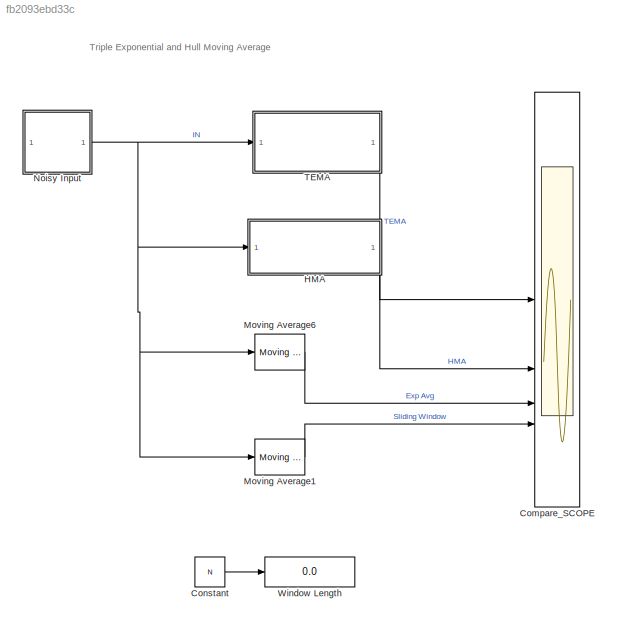
MODEL slx_fb2093ebd33c
KIND model
CONFIG AbsTol = auto
CONFIG EnableMultiTasking = off
CONFIG FixedStep = auto
CONFIG MaxStep = auto
CONFIG MinStep = auto
CONFIG PreLoadFcn = N = 100;
CONFIG RelTol = 1e-3
CONFIG SampleTimeConstraint = Unconstrained
CONFIG SolverName = VariableStepAuto
CONFIG StartTime = 0.0
CONFIG StopTime = 700
BLOCK [Scope] Compare_SCOPE
  Floating = off
  NumInputPorts = 4
  ScopeSpecificationString = Simulink.scopes.TimeScopeBlockCfg('CurrentConfiguration', extmgr.ConfigurationSet(extmgr.Configuration('Core','General UI',true),extmgr.Configuration('Core','Source UI',true),extmgr.Configuration('Sources','WiredSimulink',true),extmgr.Configuration('Visuals','Time Domain',true,'SerializedDisplays',{struct('MinYLimReal','-0.26876','MaxYLimReal','2.56185','YLabelReal','','MinYLimMag','0.00000','MaxY...<+1544ch>
BLOCK [Constant] Constant
  Value = N
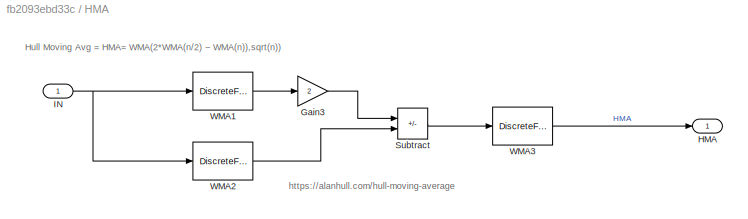
BLOCK [SubSystem] HMA
BLOCK [Gain] HMA/Gain3
  Gain = 2
BLOCK [Outport] HMA/HMA
BLOCK [Inport] HMA/IN
BLOCK [Sum] HMA/Subtract
  IconShape = rectangular
  Inputs = +-
BLOCK [DiscreteFir] HMA/WMA1
  Coefficients = [N/2:-1:1]/sum(1:N/2)
  InputPortMap = u0
  OutputPortMap = o0
BLOCK [DiscreteFir] HMA/WMA2
  Coefficients = [N:-1:1]/sum(1:N)
  InputPortMap = u0
  OutputPortMap = o0
BLOCK [DiscreteFir] HMA/WMA3
  Coefficients = [sqrt(N):-1:1]/sum(1:sqrt(N))
  InputPortMap = u0
  OutputPortMap = o0
BLOCK [Reference] Moving Average1  REF=dspstat3/Moving
Average
  AttributesFormatString = %<Method>
  SourceBlock = dspstat3/Moving\nAverage
  SourceType = dsp.simulink.MovingAverage
BLOCK [Reference] Moving Average6  REF=dspstat3/Moving
Average
  AttributesFormatString = %<Method>
  SourceBlock = dspstat3/Moving\nAverage
  SourceType = dsp.simulink.MovingAverage
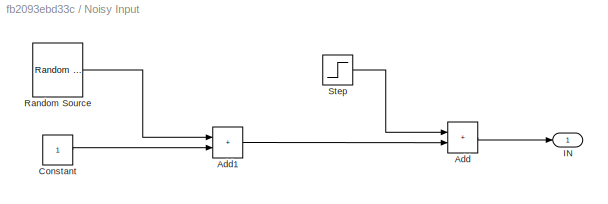
BLOCK [SubSystem] Noisy Input
BLOCK [Sum] Noisy Input/Add
  IconShape = rectangular
BLOCK [Sum] Noisy Input/Add1
  IconShape = rectangular
BLOCK [Constant] Noisy Input/Constant
  SampleTime = 1
BLOCK [Outport] Noisy Input/IN
  VectorParamsAs1DForOutWhenUnconnected = off
BLOCK [Reference] Noisy Input/Random Source  REF=dspsrcs4/Random
Source
  SourceBlock = dspsrcs4/Random\nSource
  SourceType = dsp.simulink.RandomSource
BLOCK [Step] Noisy Input/Step
  SampleTime = 0
  Time = 500
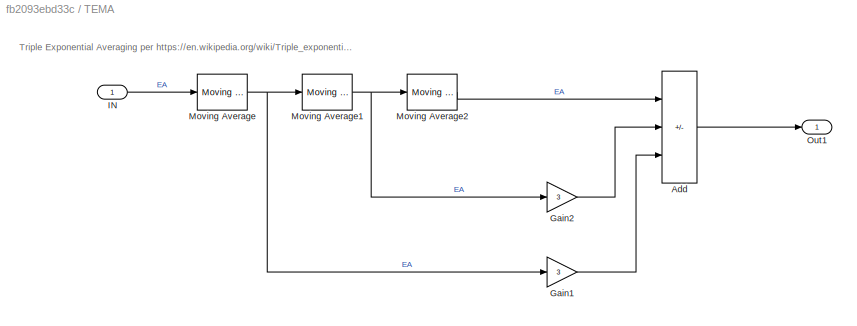
BLOCK [SubSystem] TEMA
BLOCK [Sum] TEMA/Add
  IconShape = rectangular
  Inputs = +-+
BLOCK [Gain] TEMA/Gain1
  Gain = 3
BLOCK [Gain] TEMA/Gain2
  Gain = 3
BLOCK [Inport] TEMA/IN
BLOCK [Reference] TEMA/Moving Average  REF=dspstat3/Moving
Average
  AttributesFormatString = FF = %<ForgettingFactor>
  SourceBlock = dspstat3/Moving\nAverage
  SourceType = dsp.simulink.MovingAverage
BLOCK [Reference] TEMA/Moving Average1  REF=dspstat3/Moving
Average
  AttributesFormatString = FF = %<ForgettingFactor>
  SourceBlock = dspstat3/Moving\nAverage
  SourceType = dsp.simulink.MovingAverage
BLOCK [Reference] TEMA/Moving Average2  REF=dspstat3/Moving
Average
  AttributesFormatString = FF = %<ForgettingFactor>
  SourceBlock = dspstat3/Moving\nAverage
  SourceType = dsp.simulink.MovingAverage
BLOCK [Outport] TEMA/Out1
BLOCK [Display] Window Length
  Decimation = 1
ANNOTATION (root): Triple Exponential and Hull Moving Average
ANNOTATION HMA: Hull Moving Avg = HMA= WMA(2*WMA(n/2) − WMA(n)),sqrt(n))
ANNOTATION HMA: https://alanhull.com/hull-moving-average
ANNOTATION TEMA: Triple Exponential Averaging per https://en.wikipedia.org/wiki/Triple_exponential_moving_average
LINE Constant:1 -> Window Length:1
LINE HMA/Gain3:1 -> HMA/Subtract:1
NET HMA/IN:1 -> HMA/WMA1:1, HMA/WMA2:1
LINE HMA/Subtract:1 -> HMA/WMA3:1
LINE HMA/WMA1:1 -> HMA/Gain3:1
LINE HMA/WMA2:1 -> HMA/Subtract:2
LINE HMA/WMA3:1 -> HMA/HMA:1
LINE HMA:1 -> Compare_SCOPE:2
LINE Moving Average1:1 -> Compare_SCOPE:4
LINE Moving Average6:1 -> Compare_SCOPE:3
LINE Noisy Input/Add1:1 -> Noisy Input/Add:2
LINE Noisy Input/Add:1 -> Noisy Input/IN:1
LINE Noisy Input/Constant:1 -> Noisy Input/Add1:2
LINE Noisy Input/Random Source:1 -> Noisy Input/Add1:1
LINE Noisy Input/Step:1 -> Noisy Input/Add:1
NET Noisy Input:1 -> HMA:1, Moving Average1:1, Moving Average6:1, TEMA:1
LINE TEMA/Add:1 -> TEMA/Out1:1
LINE TEMA/Gain1:1 -> TEMA/Add:3
LINE TEMA/Gain2:1 -> TEMA/Add:2
LINE TEMA/IN:1 -> TEMA/Moving Average:1
NET TEMA/Moving Average1:1 -> TEMA/Gain2:1, TEMA/Moving Average2:1
LINE TEMA/Moving Average2:1 -> TEMA/Add:1
NET TEMA/Moving Average:1 -> TEMA/Gain1:1, TEMA/Moving Average1:1
LINE TEMA:1 -> Compare_SCOPE:1
note: NET lines group one-source signal fan-out (src -> all destinations, sorted); 1:1 wires keep LINE
